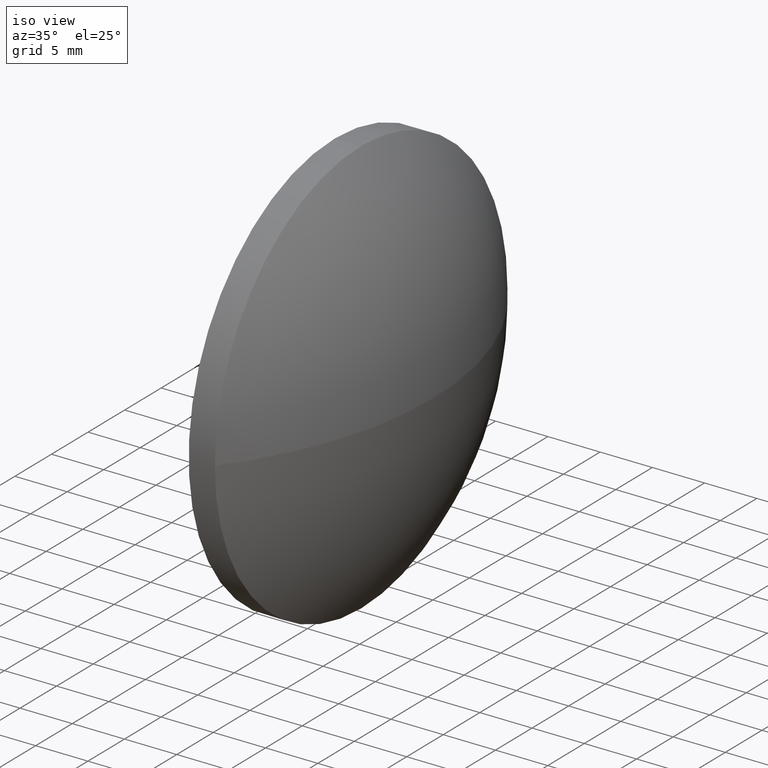
[diagram: clean part render]
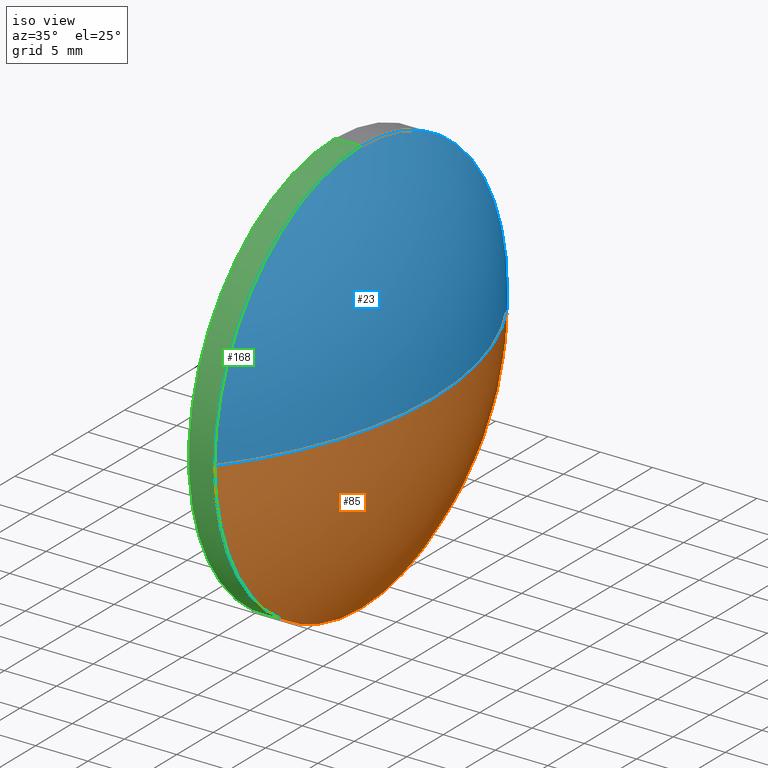
[diagram: same view with three faces highlighted in distinct colors, each labeled with its STEP entity id]
A machine part, iso view with three faces highlighted in distinct colors.
Their STEP definitions:

[orange] entity #85 — the highlighted spherical surface has radius 32.5098 mm.
#1 = EDGE_CURVE ( 'NONE', #185, #30, #11, .T. ) ;
#9 = CARTESIAN_POINT ( 'NONE',  ( 332.3594795055551000, -61.02737710045642000, 0.0000000000000000000 ) ) ;
#11 = CIRCLE ( 'NONE', #53, 32.50976744186051800 ) ;
#15 = SPHERICAL_SURFACE ( 'NONE', #86, 32.50976744186051800 ) ;
#24 = DIRECTION ( 'NONE',  ( 0.0000000000000000000, 0.0000000000000000000, 1.000000000000000000 ) ) ;
#30 = VERTEX_POINT ( 'NONE', #91 ) ;
#36 = CARTESIAN_POINT ( 'NONE',  ( 306.7297120636945900, -61.02737710045642700, 0.0000000000000000000 ) ) ;
#37 = DIRECTION ( 'NONE',  ( -1.000000000000000000, -0.0000000000000000000, -0.0000000000000000000 ) ) ;
#38 = DIRECTION ( 'NONE',  ( 0.0000000000000000000, 1.000000000000000000, 1.224646799147353000E-016 ) ) ;
#39 = ORIENTED_EDGE ( 'NONE', *, *, #88, .T. ) ;
#44 = AXIS2_PLACEMENT_3D ( 'NONE', #180, #37, #80 ) ;
#45 = ORIENTED_EDGE ( 'NONE', *, *, #1, .F. ) ;
#48 = CARTESIAN_POINT ( 'NONE',  ( 306.7297120636945900, -61.02737710045642700, 0.0000000000000000000 ) ) ;
#53 = AXIS2_PLACEMENT_3D ( 'NONE', #48, #54, #144 ) ;
#54 = DIRECTION ( 'NONE',  ( -0.0000000000000000000, 0.0000000000000000000, 1.000000000000000000 ) ) ;
#61 = CIRCLE ( 'NONE', #44, 20.00000000000000400 ) ;
#64 = CIRCLE ( 'NONE', #170, 20.00000000000000400 ) ;
#80 = DIRECTION ( 'NONE',  ( 0.0000000000000000000, 0.0000000000000000000, 1.000000000000000000 ) ) ;
#82 = CARTESIAN_POINT ( 'NONE',  ( 339.2394795055551000, -61.02737710045642700, 0.0000000000000000000 ) ) ;
#83 = DIRECTION ( 'NONE',  ( 0.0000000000000000000, 1.000000000000000000, 0.0000000000000000000 ) ) ;
#85 = ADVANCED_FACE ( 'NONE', ( #173 ), #15, .T. ) ;
#86 = AXIS2_PLACEMENT_3D ( 'NONE', #151, #135, #83 ) ;
#88 = EDGE_CURVE ( 'NONE', #185, #140, #129, .T. ) ;
#91 = CARTESIAN_POINT ( 'NONE',  ( 332.3594795055551000, -41.02737710045641300, 0.0000000000000000000 ) ) ;
#100 = VERTEX_POINT ( 'NONE', #146 ) ;
#102 = ORIENTED_EDGE ( 'NONE', *, *, #130, .F. ) ;
#109 = DIRECTION ( 'NONE',  ( 0.0000000000000000000, 1.224646799147353200E-016, -1.000000000000000000 ) ) ;
#112 = ORIENTED_EDGE ( 'NONE', *, *, #160, .F. ) ;
#123 = DIRECTION ( 'NONE',  ( -1.000000000000000000, -0.0000000000000000000, -0.0000000000000000000 ) ) ;
#129 = CIRCLE ( 'NONE', #181, 32.50976744186051800 ) ;
#130 = EDGE_CURVE ( 'NONE', #30, #100, #64, .T. ) ;
#135 = DIRECTION ( 'NONE',  ( -0.0000000000000000000, 0.0000000000000000000, -1.000000000000000000 ) ) ;
#140 = VERTEX_POINT ( 'NONE', #164 ) ;
#144 = DIRECTION ( 'NONE',  ( 1.000000000000000000, 0.0000000000000000000, 0.0000000000000000000 ) ) ;
#146 = CARTESIAN_POINT ( 'NONE',  ( 332.3594795055551000, -61.02737710045642000, -20.00000000000000400 ) ) ;
#151 = CARTESIAN_POINT ( 'NONE',  ( 306.7297120636945900, -61.02737710045642700, 0.0000000000000000000 ) ) ;
#160 = EDGE_CURVE ( 'NONE', #100, #140, #61, .T. ) ;
#164 = CARTESIAN_POINT ( 'NONE',  ( 332.3594795055551000, -81.02737710045643400, -2.449293598294707300E-015 ) ) ;
#170 = AXIS2_PLACEMENT_3D ( 'NONE', #9, #123, #24 ) ;
#171 = EDGE_LOOP ( 'NONE', ( #45, #39, #112, #102 ) ) ;
#173 = FACE_OUTER_BOUND ( 'NONE', #171, .T. ) ;
#180 = CARTESIAN_POINT ( 'NONE',  ( 332.3594795055551000, -61.02737710045642000, 0.0000000000000000000 ) ) ;
#181 = AXIS2_PLACEMENT_3D ( 'NONE', #36, #109, #38 ) ;
#185 = VERTEX_POINT ( 'NONE', #82 ) ;

[blue] entity #23 — the highlighted spherical surface has radius 32.5098 mm.
#1 = EDGE_CURVE ( 'NONE', #185, #30, #11, .T. ) ;
#3 = VERTEX_POINT ( 'NONE', #4 ) ;
#4 = CARTESIAN_POINT ( 'NONE',  ( 332.3594795055551000, -61.02737710045642000, 20.00000000000000400 ) ) ;
#8 = ORIENTED_EDGE ( 'NONE', *, *, #1, .T. ) ;
#10 = CIRCLE ( 'NONE', #132, 20.00000000000000400 ) ;
#11 = CIRCLE ( 'NONE', #53, 32.50976744186051800 ) ;
#13 = SPHERICAL_SURFACE ( 'NONE', #71, 32.50976744186051800 ) ;
#19 = DIRECTION ( 'NONE',  ( -1.000000000000000000, -0.0000000000000000000, -0.0000000000000000000 ) ) ;
#21 = CIRCLE ( 'NONE', #29, 20.00000000000000400 ) ;
#23 = ADVANCED_FACE ( 'NONE', ( #94 ), #13, .T. ) ;
#29 = AXIS2_PLACEMENT_3D ( 'NONE', #108, #19, #66 ) ;
#30 = VERTEX_POINT ( 'NONE', #91 ) ;
#32 = EDGE_CURVE ( 'NONE', #3, #30, #10, .T. ) ;
#33 = DIRECTION ( 'NONE',  ( 0.0000000000000000000, 1.000000000000000000, 0.0000000000000000000 ) ) ;
#36 = CARTESIAN_POINT ( 'NONE',  ( 306.7297120636945900, -61.02737710045642700, 0.0000000000000000000 ) ) ;
#38 = DIRECTION ( 'NONE',  ( 0.0000000000000000000, 1.000000000000000000, 1.224646799147353000E-016 ) ) ;
#48 = CARTESIAN_POINT ( 'NONE',  ( 306.7297120636945900, -61.02737710045642700, 0.0000000000000000000 ) ) ;
#53 = AXIS2_PLACEMENT_3D ( 'NONE', #48, #54, #144 ) ;
#54 = DIRECTION ( 'NONE',  ( -0.0000000000000000000, 0.0000000000000000000, 1.000000000000000000 ) ) ;
#55 = DIRECTION ( 'NONE',  ( -1.000000000000000000, -0.0000000000000000000, -0.0000000000000000000 ) ) ;
#66 = DIRECTION ( 'NONE',  ( 0.0000000000000000000, 0.0000000000000000000, 1.000000000000000000 ) ) ;
#71 = AXIS2_PLACEMENT_3D ( 'NONE', #176, #104, #33 ) ;
#82 = CARTESIAN_POINT ( 'NONE',  ( 339.2394795055551000, -61.02737710045642700, 0.0000000000000000000 ) ) ;
#88 = EDGE_CURVE ( 'NONE', #185, #140, #129, .T. ) ;
#91 = CARTESIAN_POINT ( 'NONE',  ( 332.3594795055551000, -41.02737710045641300, 0.0000000000000000000 ) ) ;
#94 = FACE_OUTER_BOUND ( 'NONE', #143, .T. ) ;
#104 = DIRECTION ( 'NONE',  ( -0.0000000000000000000, 0.0000000000000000000, -1.000000000000000000 ) ) ;
#106 = ORIENTED_EDGE ( 'NONE', *, *, #113, .F. ) ;
#108 = CARTESIAN_POINT ( 'NONE',  ( 332.3594795055551000, -61.02737710045642000, 0.0000000000000000000 ) ) ;
#109 = DIRECTION ( 'NONE',  ( 0.0000000000000000000, 1.224646799147353200E-016, -1.000000000000000000 ) ) ;
#113 = EDGE_CURVE ( 'NONE', #140, #3, #21, .T. ) ;
#127 = ORIENTED_EDGE ( 'NONE', *, *, #88, .F. ) ;
#129 = CIRCLE ( 'NONE', #181, 32.50976744186051800 ) ;
#132 = AXIS2_PLACEMENT_3D ( 'NONE', #179, #55, #148 ) ;
#140 = VERTEX_POINT ( 'NONE', #164 ) ;
#143 = EDGE_LOOP ( 'NONE', ( #127, #8, #150, #106 ) ) ;
#144 = DIRECTION ( 'NONE',  ( 1.000000000000000000, 0.0000000000000000000, 0.0000000000000000000 ) ) ;
#148 = DIRECTION ( 'NONE',  ( 0.0000000000000000000, 0.0000000000000000000, 1.000000000000000000 ) ) ;
#150 = ORIENTED_EDGE ( 'NONE', *, *, #32, .F. ) ;
#164 = CARTESIAN_POINT ( 'NONE',  ( 332.3594795055551000, -81.02737710045643400, -2.449293598294707300E-015 ) ) ;
#176 = CARTESIAN_POINT ( 'NONE',  ( 306.7297120636945900, -61.02737710045642700, 0.0000000000000000000 ) ) ;
#179 = CARTESIAN_POINT ( 'NONE',  ( 332.3594795055551000, -61.02737710045642000, 0.0000000000000000000 ) ) ;
#181 = AXIS2_PLACEMENT_3D ( 'NONE', #36, #109, #38 ) ;
#185 = VERTEX_POINT ( 'NONE', #82 ) ;

[green] entity #168 — the highlighted cylindrical surface (partial cylindrical patch) has radius 20 mm, axis along (-1, -0, -0).
#3 = VERTEX_POINT ( 'NONE', #4 ) ;
#4 = CARTESIAN_POINT ( 'NONE',  ( 332.3594795055551000, -61.02737710045642000, 20.00000000000000400 ) ) ;
#7 = VECTOR ( 'NONE', #65, 1000.000000000000000 ) ;
#17 = EDGE_CURVE ( 'NONE', #117, #186, #124, .T. ) ;
#18 = FACE_OUTER_BOUND ( 'NONE', #175, .T. ) ;
#19 = DIRECTION ( 'NONE',  ( -1.000000000000000000, -0.0000000000000000000, -0.0000000000000000000 ) ) ;
#21 = CIRCLE ( 'NONE', #29, 20.00000000000000400 ) ;
#22 = ORIENTED_EDGE ( 'NONE', *, *, #113, .T. ) ;
#27 = LINE ( 'NONE', #119, #7 ) ;
#28 = ORIENTED_EDGE ( 'NONE', *, *, #141, .F. ) ;
#29 = AXIS2_PLACEMENT_3D ( 'NONE', #108, #19, #66 ) ;
#31 = CARTESIAN_POINT ( 'NONE',  ( 329.8594795055551000, -61.02737710045642000, 0.0000000000000000000 ) ) ;
#37 = DIRECTION ( 'NONE',  ( -1.000000000000000000, -0.0000000000000000000, -0.0000000000000000000 ) ) ;
#40 = CARTESIAN_POINT ( 'NONE',  ( 329.8594795055551000, -61.02737710045642000, 20.00000000000000400 ) ) ;
#44 = AXIS2_PLACEMENT_3D ( 'NONE', #180, #37, #80 ) ;
#46 = LINE ( 'NONE', #120, #174 ) ;
#56 = AXIS2_PLACEMENT_3D ( 'NONE', #165, #95, #153 ) ;
#59 = AXIS2_PLACEMENT_3D ( 'NONE', #31, #131, #90 ) ;
#61 = CIRCLE ( 'NONE', #44, 20.00000000000000400 ) ;
#65 = DIRECTION ( 'NONE',  ( -1.000000000000000000, -0.0000000000000000000, -0.0000000000000000000 ) ) ;
#66 = DIRECTION ( 'NONE',  ( 0.0000000000000000000, 0.0000000000000000000, 1.000000000000000000 ) ) ;
#67 = CYLINDRICAL_SURFACE ( 'NONE', #56, 20.00000000000000400 ) ;
#80 = DIRECTION ( 'NONE',  ( 0.0000000000000000000, 0.0000000000000000000, 1.000000000000000000 ) ) ;
#81 = ORIENTED_EDGE ( 'NONE', *, *, #160, .T. ) ;
#89 = ORIENTED_EDGE ( 'NONE', *, *, #17, .F. ) ;
#90 = DIRECTION ( 'NONE',  ( 0.0000000000000000000, 0.0000000000000000000, 1.000000000000000000 ) ) ;
#93 = CARTESIAN_POINT ( 'NONE',  ( 329.8594795055551000, -61.02737710045642000, -20.00000000000000400 ) ) ;
#95 = DIRECTION ( 'NONE',  ( -1.000000000000000000, -0.0000000000000000000, -0.0000000000000000000 ) ) ;
#100 = VERTEX_POINT ( 'NONE', #146 ) ;
#103 = EDGE_CURVE ( 'NONE', #3, #186, #27, .T. ) ;
#108 = CARTESIAN_POINT ( 'NONE',  ( 332.3594795055551000, -61.02737710045642000, 0.0000000000000000000 ) ) ;
#113 = EDGE_CURVE ( 'NONE', #140, #3, #21, .T. ) ;
#117 = VERTEX_POINT ( 'NONE', #93 ) ;
#119 = CARTESIAN_POINT ( 'NONE',  ( 325.1649363249780400, -61.02737710045642000, 20.00000000000000400 ) ) ;
#120 = CARTESIAN_POINT ( 'NONE',  ( 325.1649363249780400, -61.02737710045642000, -20.00000000000000400 ) ) ;
#122 = DIRECTION ( 'NONE',  ( -1.000000000000000000, -0.0000000000000000000, -0.0000000000000000000 ) ) ;
#124 = CIRCLE ( 'NONE', #59, 20.00000000000000400 ) ;
#131 = DIRECTION ( 'NONE',  ( -1.000000000000000000, -0.0000000000000000000, -0.0000000000000000000 ) ) ;
#140 = VERTEX_POINT ( 'NONE', #164 ) ;
#141 = EDGE_CURVE ( 'NONE', #100, #117, #46, .T. ) ;
#146 = CARTESIAN_POINT ( 'NONE',  ( 332.3594795055551000, -61.02737710045642000, -20.00000000000000400 ) ) ;
#153 = DIRECTION ( 'NONE',  ( 0.0000000000000000000, 0.0000000000000000000, 1.000000000000000000 ) ) ;
#160 = EDGE_CURVE ( 'NONE', #100, #140, #61, .T. ) ;
#164 = CARTESIAN_POINT ( 'NONE',  ( 332.3594795055551000, -81.02737710045643400, -2.449293598294707300E-015 ) ) ;
#165 = CARTESIAN_POINT ( 'NONE',  ( 325.1649363249780400, -61.02737710045642000, 0.0000000000000000000 ) ) ;
#167 = ORIENTED_EDGE ( 'NONE', *, *, #103, .T. ) ;
#168 = ADVANCED_FACE ( 'NONE', ( #18 ), #67, .T. ) ;
#174 = VECTOR ( 'NONE', #122, 1000.000000000000000 ) ;
#175 = EDGE_LOOP ( 'NONE', ( #28, #81, #22, #167, #89 ) ) ;
#180 = CARTESIAN_POINT ( 'NONE',  ( 332.3594795055551000, -61.02737710045642000, 0.0000000000000000000 ) ) ;
#186 = VERTEX_POINT ( 'NONE', #40 ) ;